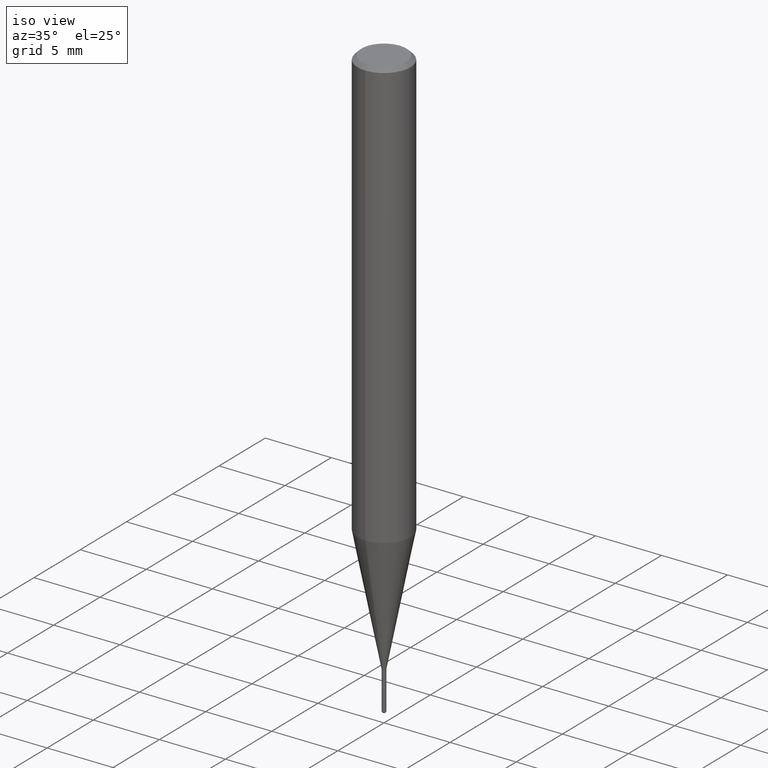
[diagram: clean part render]
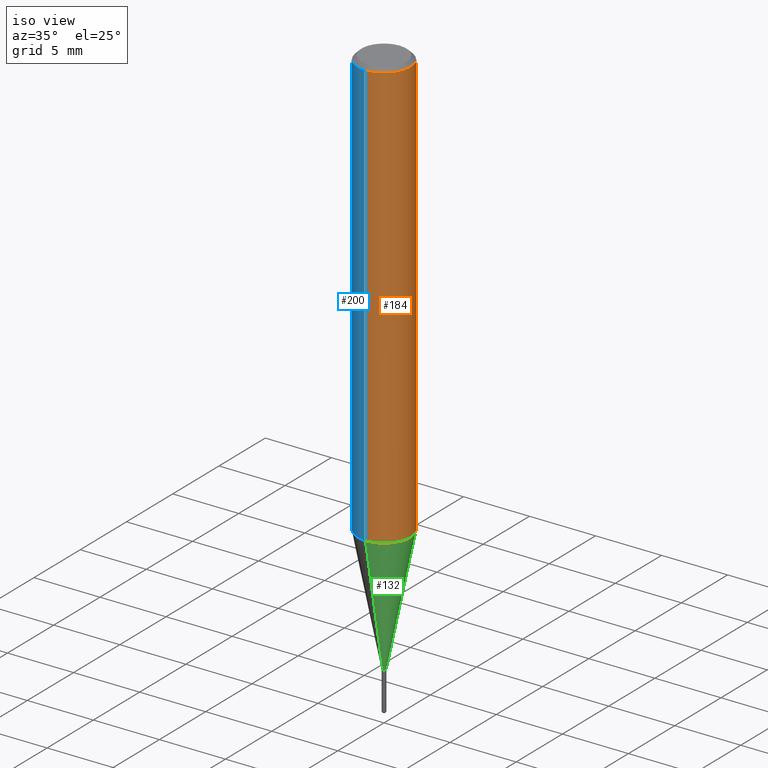
[diagram: same view with three faces highlighted in distinct colors, each labeled with its STEP entity id]
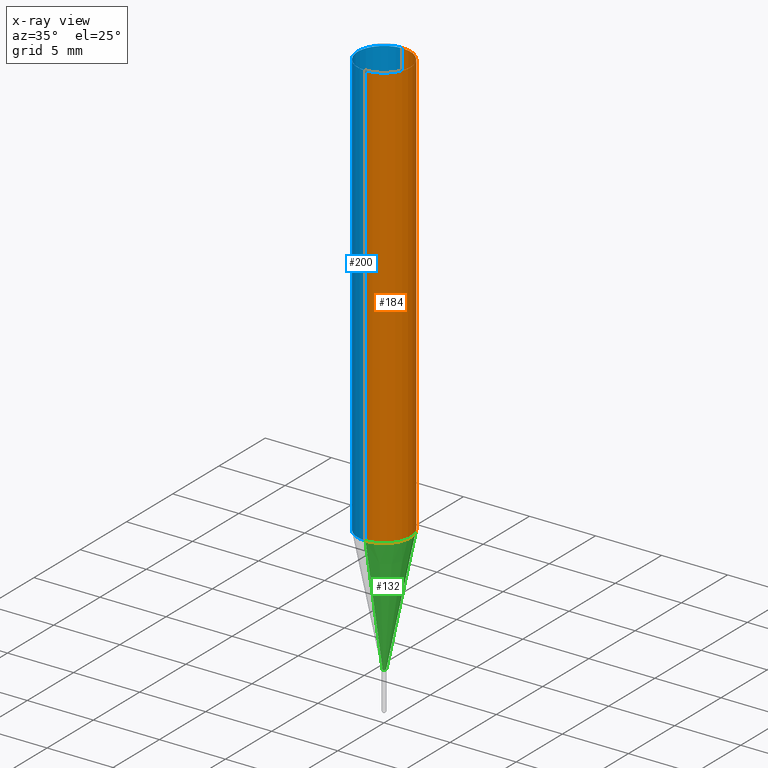
[diagram: x-ray of the same camera — body ghosted, the three highlighted faces saturated]
A machine part, iso view with three faces highlighted in distinct colors.
The next image is the same camera in x-ray (body ghosted, the three faces saturated) — at least one of them is partly hidden behind the body in this view.
Their STEP definitions:

[orange] entity #184 — the highlighted cylindrical surface (edge-blend (fillet) strip) has radius 2 mm, axis along (-0, -0, 1).
#110=VERTEX_POINT('',#254);
#128=VERTEX_POINT('',#276);
#136=EDGE_CURVE('',#162,#110,#286,.T.);
#140=EDGE_CURVE('',#196,#128,#290,.T.);
#146=EDGE_CURVE('',#110,#196,#297,.T.);
#162=VERTEX_POINT('',#315);
#184=ADVANCED_FACE('',(#338),#339,.T.);
#192=EDGE_CURVE('',#162,#128,#347,.T.);
#196=VERTEX_POINT('',#352);
#254=CARTESIAN_POINT('',(0.0,2.0,-32.457));
#276=CARTESIAN_POINT('',(2.44921270764475E-016,-2.0,-0.299999999999997));
#286=LINE('',#448,#449);
#290=LINE('',#454,#455);
#297=CIRCLE('',#464,2.0);
#315=CARTESIAN_POINT('',(0.0,2.0,-0.299999999999997));
#338=FACE_OUTER_BOUND('',#514,.T.);
#339=CYLINDRICAL_SURFACE('',#515,2.0);
#347=CIRCLE('',#527,2.0);
#352=CARTESIAN_POINT('',(2.44921270764475E-016,-2.0,-32.457));
#448=CARTESIAN_POINT('',(-2.44921270764475E-016,2.0,-16.3785));
#449=VECTOR('',#637,1.0);
#454=CARTESIAN_POINT('',(2.44921270764475E-016,-2.0,-16.3785));
#455=VECTOR('',#638,1.0);
#464=AXIS2_PLACEMENT_3D('',#650,#651,#652);
#514=EDGE_LOOP('',(#692,#693,#694,#695));
#515=AXIS2_PLACEMENT_3D('',#696,#697,#698);
#527=AXIS2_PLACEMENT_3D('',#703,#704,#705);
#637=DIRECTION('',(0.0,0.0,-1.0));
#638=DIRECTION('',(-0.0,-0.0,1.0));
#650=CARTESIAN_POINT('',(0.0,0.0,-32.457));
#651=DIRECTION('',(0.0,0.0,-1.0));
#652=DIRECTION('',(0.0,1.0,0.0));
#692=ORIENTED_EDGE('',*,*,#136,.F.);
#693=ORIENTED_EDGE('',*,*,#192,.T.);
#694=ORIENTED_EDGE('',*,*,#140,.F.);
#695=ORIENTED_EDGE('',*,*,#146,.F.);
#696=CARTESIAN_POINT('',(0.0,0.0,-16.3785));
#697=DIRECTION('',(-0.0,-0.0,1.0));
#698=DIRECTION('',(0.0,1.0,0.0));
#703=CARTESIAN_POINT('',(0.0,0.0,-0.299999999999997));
#704=DIRECTION('',(0.0,0.0,-1.0));
#705=DIRECTION('',(0.0,1.0,0.0));

[blue] entity #200 — the highlighted cylindrical surface (edge-blend (fillet) strip) has radius 2 mm, axis along (-0, -0, 1).
#108=EDGE_CURVE('',#196,#110,#252,.T.);
#110=VERTEX_POINT('',#254);
#128=VERTEX_POINT('',#276);
#136=EDGE_CURVE('',#162,#110,#286,.T.);
#140=EDGE_CURVE('',#196,#128,#290,.T.);
#162=VERTEX_POINT('',#315);
#196=VERTEX_POINT('',#352);
#200=ADVANCED_FACE('',(#357),#358,.T.);
#208=EDGE_CURVE('',#128,#162,#366,.T.);
#252=CIRCLE('',#406,2.0);
#254=CARTESIAN_POINT('',(0.0,2.0,-32.457));
#276=CARTESIAN_POINT('',(2.44921270764475E-016,-2.0,-0.299999999999997));
#286=LINE('',#448,#449);
#290=LINE('',#454,#455);
#315=CARTESIAN_POINT('',(0.0,2.0,-0.299999999999997));
#352=CARTESIAN_POINT('',(2.44921270764475E-016,-2.0,-32.457));
#357=FACE_OUTER_BOUND('',#537,.T.);
#358=CYLINDRICAL_SURFACE('',#538,2.0);
#366=CIRCLE('',#549,2.0);
#406=AXIS2_PLACEMENT_3D('',#579,#580,#581);
#448=CARTESIAN_POINT('',(-2.44921270764475E-016,2.0,-16.3785));
#449=VECTOR('',#637,1.0);
#454=CARTESIAN_POINT('',(2.44921270764475E-016,-2.0,-16.3785));
#455=VECTOR('',#638,1.0);
#537=EDGE_LOOP('',(#719,#720,#721,#722));
#538=AXIS2_PLACEMENT_3D('',#723,#724,#725);
#549=AXIS2_PLACEMENT_3D('',#732,#733,#734);
#579=CARTESIAN_POINT('',(0.0,0.0,-32.457));
#580=DIRECTION('',(0.0,0.0,-1.0));
#581=DIRECTION('',(0.0,1.0,0.0));
#637=DIRECTION('',(0.0,0.0,-1.0));
#638=DIRECTION('',(-0.0,-0.0,1.0));
#719=ORIENTED_EDGE('',*,*,#136,.T.);
#720=ORIENTED_EDGE('',*,*,#108,.F.);
#721=ORIENTED_EDGE('',*,*,#140,.T.);
#722=ORIENTED_EDGE('',*,*,#208,.T.);
#723=CARTESIAN_POINT('',(0.0,0.0,-16.3785));
#724=DIRECTION('',(-0.0,-0.0,1.0));
#725=DIRECTION('',(0.0,1.0,0.0));
#732=CARTESIAN_POINT('',(0.0,0.0,-0.299999999999997));
#733=DIRECTION('',(0.0,0.0,-1.0));
#734=DIRECTION('',(0.0,1.0,0.0));

[green] entity #132 — the highlighted conical surface has half-angle 11 deg.
#126=EDGE_CURVE('',#180,#204,#274,.T.);
#132=ADVANCED_FACE('',(#280),#281,.T.);
#138=VERTEX_POINT('',#288);
#152=EDGE_CURVE('',#204,#178,#304,.T.);
#178=VERTEX_POINT('',#332);
#180=VERTEX_POINT('',#334);
#182=EDGE_CURVE('',#180,#138,#336,.T.);
#188=EDGE_CURVE('',#178,#138,#343,.T.);
#204=VERTEX_POINT('',#362);
#274=LINE('',#432,#433);
#280=FACE_OUTER_BOUND('',#441,.T.);
#281=CONICAL_SURFACE('',#442,1.07245,0.19198911666217);
#288=CARTESIAN_POINT('',(2.44915147732706E-016,-1.99995,-32.457));
#304=CIRCLE('',#473,0.14495);
#332=CARTESIAN_POINT('',(1.77506690986554E-017,-0.14495,-42.0));
#334=CARTESIAN_POINT('',(0.0,1.99995,-32.457));
#336=CIRCLE('',#512,1.99995);
#343=LINE('',#521,#522);
#362=CARTESIAN_POINT('',(0.0,0.14495,-42.0));
#432=CARTESIAN_POINT('',(-1.31332908415681E-016,1.07245,-37.2285));
#433=VECTOR('',#619,1.0);
#441=EDGE_LOOP('',(#622,#623,#624,#625));
#442=AXIS2_PLACEMENT_3D('',#626,#627,#628);
#473=AXIS2_PLACEMENT_3D('',#664,#665,#666);
#512=AXIS2_PLACEMENT_3D('',#688,#689,#690);
#521=CARTESIAN_POINT('',(1.31332908415681E-016,-1.07245,-37.2285));
#522=VECTOR('',#702,1.0);
#619=DIRECTION('',(2.33669392942694E-017,-0.190811841056793,-0.981626630299177));
#622=ORIENTED_EDGE('',*,*,#126,.F.);
#623=ORIENTED_EDGE('',*,*,#182,.T.);
#624=ORIENTED_EDGE('',*,*,#188,.F.);
#625=ORIENTED_EDGE('',*,*,#152,.F.);
#626=CARTESIAN_POINT('',(0.0,0.0,-37.2285));
#627=DIRECTION('',(-0.0,-0.0,1.0));
#628=DIRECTION('',(0.0,1.0,0.0));
#664=CARTESIAN_POINT('',(0.0,0.0,-42.0));
#665=DIRECTION('',(0.0,0.0,-1.0));
#666=DIRECTION('',(0.0,1.0,0.0));
#688=CARTESIAN_POINT('',(0.0,0.0,-32.457));
#689=DIRECTION('',(0.0,0.0,-1.0));
#690=DIRECTION('',(0.0,1.0,0.0));
#702=DIRECTION('',(2.33669392942694E-017,-0.190811841056793,0.981626630299177));